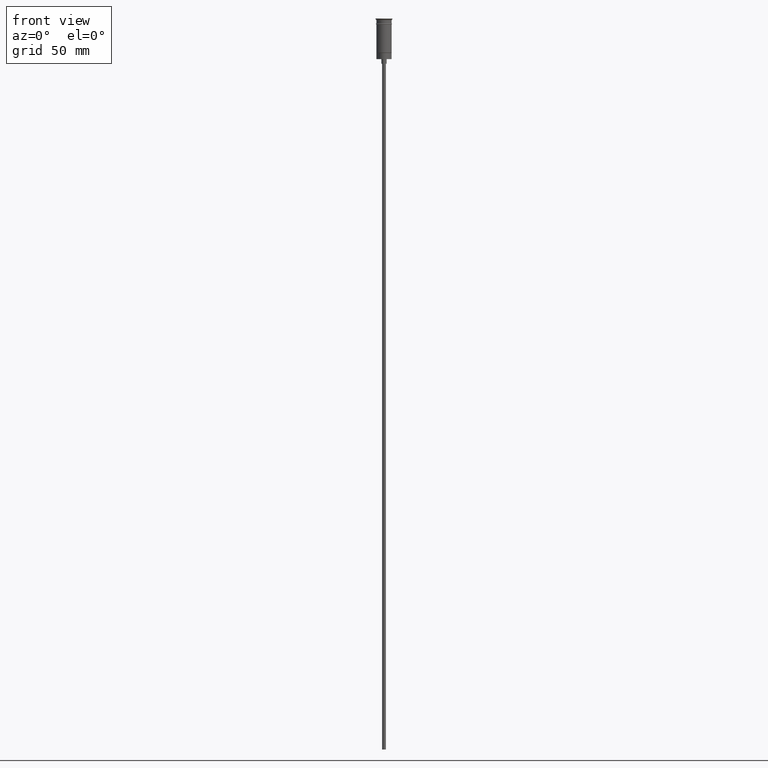
[diagram: clean part render]
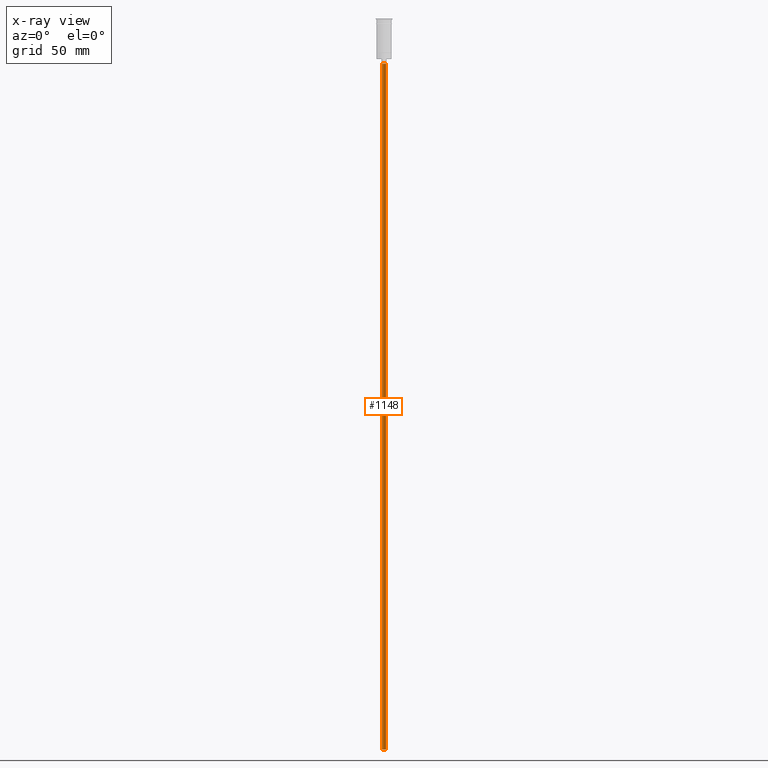
[diagram: x-ray — body ghosted, one internal face saturated and labeled with its STEP entity id]
A machine part, front view, then the same camera in x-ray: the body is ghosted and one INTERNAL B-rep face — a face not visible from any outside direction — is saturated and labeled: STEP entity #1148.
In plain terms, the highlighted cylindrical surface (edge-blend (fillet) strip) has radius 1.25 mm, axis along (-0, -0, 1).
Its self-contained STEP definition (entity closure, byte-faithful):
#44 = CARTESIAN_POINT ( 'NONE',  ( 0.000000000000000000, 0.000000000000000000, -29.50000000000000000 ) ) ;
#60 = FACE_OUTER_BOUND ( 'NONE', #1048, .T. ) ;
#99 = VERTEX_POINT ( 'NONE', #894 ) ;
#225 = ORIENTED_EDGE ( 'NONE', *, *, #601, .F. ) ;
#232 = VECTOR ( 'NONE', #453, 1000.000000000000000 ) ;
#278 = AXIS2_PLACEMENT_3D ( 'NONE', #1213, #598, #1588 ) ;
#320 = DIRECTION ( 'NONE',  ( 1.000000000000000000, 0.000000000000000000, 0.000000000000000000 ) ) ;
#404 = CIRCLE ( 'NONE', #278, 1.250000000000000000 ) ;
#453 = DIRECTION ( 'NONE',  ( -0.000000000000000000, -0.000000000000000000, 1.000000000000000000 ) ) ;
#465 = EDGE_CURVE ( 'NONE', #1462, #663, #404, .T. ) ;
#548 = CARTESIAN_POINT ( 'NONE',  ( 1.250000000000000000, 0.000000000000000000, -476.5000000000000568 ) ) ;
#556 = CARTESIAN_POINT ( 'NONE',  ( 1.250000000000000000, 0.000000000000000000, -476.5000000000000568 ) ) ;
#576 = EDGE_CURVE ( 'NONE', #99, #1534, #871, .T. ) ;
#598 = DIRECTION ( 'NONE',  ( 0.000000000000000000, 0.000000000000000000, -1.000000000000000000 ) ) ;
#601 = EDGE_CURVE ( 'NONE', #663, #1534, #1031, .T. ) ;
#650 = DIRECTION ( 'NONE',  ( -1.000000000000000000, 0.000000000000000000, 0.000000000000000000 ) ) ;
#659 = CARTESIAN_POINT ( 'NONE',  ( -1.250000000000000000, 1.530808498934191571E-16, -476.5000000000000568 ) ) ;
#663 = VERTEX_POINT ( 'NONE', #556 ) ;
#689 = CARTESIAN_POINT ( 'NONE',  ( -1.250000000000000000, 1.530808498934191571E-16, -476.5000000000000568 ) ) ;
#703 = ORIENTED_EDGE ( 'NONE', *, *, #968, .T. ) ;
#710 = DIRECTION ( 'NONE',  ( -0.000000000000000000, -0.000000000000000000, 1.000000000000000000 ) ) ;
#772 = DIRECTION ( 'NONE',  ( 0.000000000000000000, 0.000000000000000000, -1.000000000000000000 ) ) ;
#871 = CIRCLE ( 'NONE', #1057, 1.250000000000000000 ) ;
#894 = CARTESIAN_POINT ( 'NONE',  ( -1.250000000000000000, 1.530808498934191571E-16, -29.50000000000000000 ) ) ;
#924 = ORIENTED_EDGE ( 'NONE', *, *, #465, .F. ) ;
#968 = EDGE_CURVE ( 'NONE', #1462, #99, #1571, .T. ) ;
#1031 = LINE ( 'NONE', #548, #1598 ) ;
#1043 = CARTESIAN_POINT ( 'NONE',  ( 0.000000000000000000, 0.000000000000000000, -476.5000000000000568 ) ) ;
#1048 = EDGE_LOOP ( 'NONE', ( #924, #703, #1130, #225 ) ) ;
#1057 = AXIS2_PLACEMENT_3D ( 'NONE', #44, #772, #650 ) ;
#1077 = CYLINDRICAL_SURFACE ( 'NONE', #1553, 1.250000000000000000 ) ;
#1130 = ORIENTED_EDGE ( 'NONE', *, *, #576, .T. ) ;
#1148 = ADVANCED_FACE ( 'NONE', ( #60 ), #1077, .T. ) ;
#1213 = CARTESIAN_POINT ( 'NONE',  ( 0.000000000000000000, 0.000000000000000000, -476.5000000000000568 ) ) ;
#1300 = CARTESIAN_POINT ( 'NONE',  ( 1.250000000000000000, 0.000000000000000000, -29.50000000000000000 ) ) ;
#1462 = VERTEX_POINT ( 'NONE', #659 ) ;
#1529 = DIRECTION ( 'NONE',  ( -0.000000000000000000, -0.000000000000000000, 1.000000000000000000 ) ) ;
#1534 = VERTEX_POINT ( 'NONE', #1300 ) ;
#1553 = AXIS2_PLACEMENT_3D ( 'NONE', #1043, #710, #320 ) ;
#1571 = LINE ( 'NONE', #689, #232 ) ;
#1588 = DIRECTION ( 'NONE',  ( -1.000000000000000000, 0.000000000000000000, 0.000000000000000000 ) ) ;
#1598 = VECTOR ( 'NONE', #1529, 1000.000000000000000 ) ;